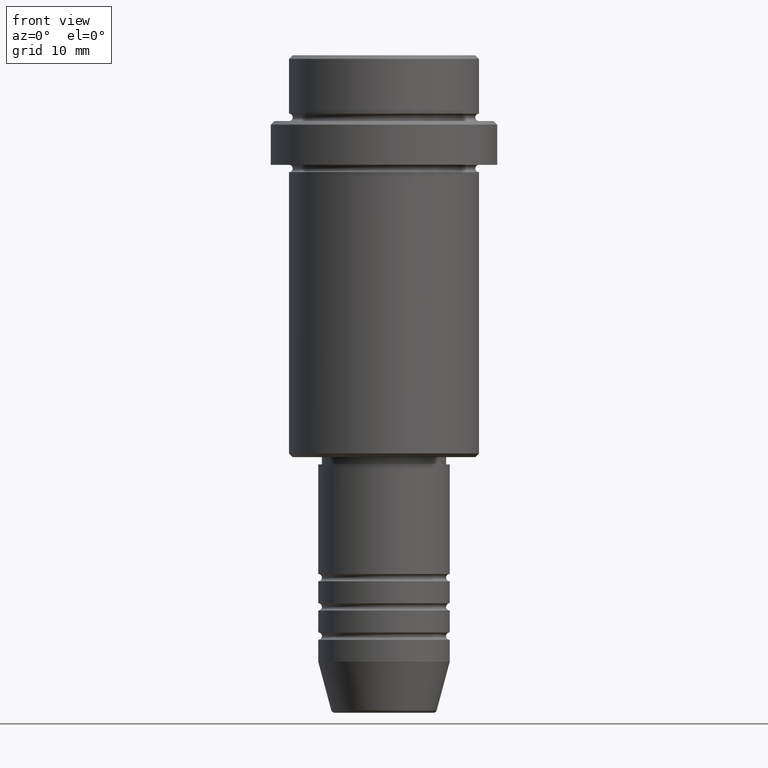
[diagram: clean part render]
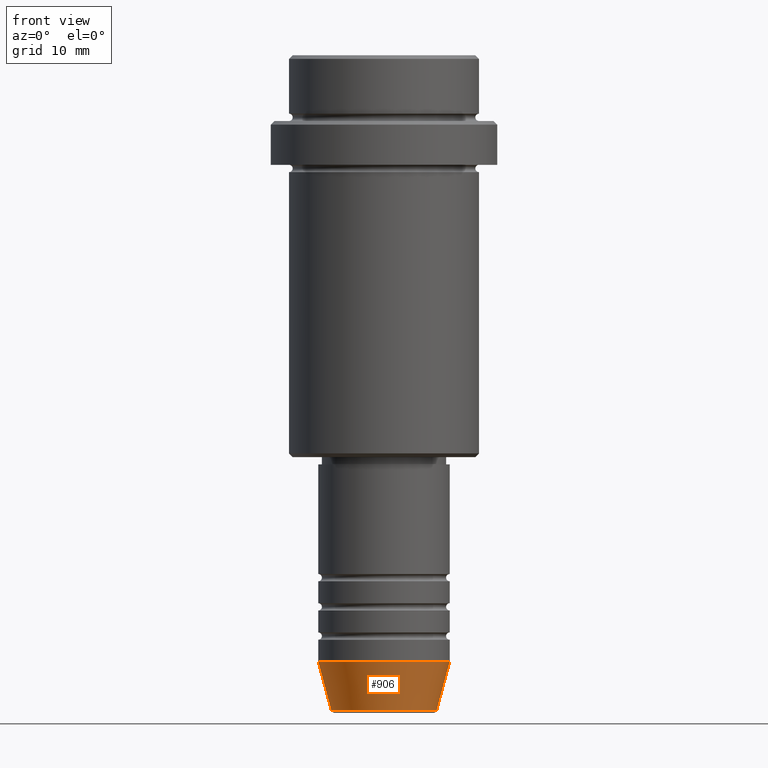
[diagram: same view with one face highlighted and labeled with its STEP entity id]
A machine part, front view. The second image highlights one B-rep face of the part: STEP entity #906.
In plain terms, the highlighted conical surface has half-angle 15 deg.
Its self-contained STEP definition (entity closure, byte-faithful):
#13 = DIRECTION ( 'NONE',  ( 0.2588190451025213501, 0.000000000000000000, 0.9659258262890680902 ) ) ;
#19 = CIRCLE ( 'NONE', #229, 7.223655072137193045 ) ;
#44 = AXIS2_PLACEMENT_3D ( 'NONE', #690, #261, #1127 ) ;
#74 = DIRECTION ( 'NONE',  ( -0.000000000000000000, -0.000000000000000000, 1.000000000000000000 ) ) ;
#99 = EDGE_CURVE ( 'NONE', #801, #1409, #646, .T. ) ;
#134 = VECTOR ( 'NONE', #414, 1000.000000000000000 ) ;
#141 = CARTESIAN_POINT ( 'NONE',  ( -7.223655072137193045, 9.934123627281767082E-16, -89.62940952255124216 ) ) ;
#154 = EDGE_CURVE ( 'NONE', #1069, #218, #561, .T. ) ;
#167 = FACE_OUTER_BOUND ( 'NONE', #829, .T. ) ;
#178 = DIRECTION ( 'NONE',  ( 1.000000000000000000, 0.000000000000000000, 0.000000000000000000 ) ) ;
#218 = VERTEX_POINT ( 'NONE', #226 ) ;
#226 = CARTESIAN_POINT ( 'NONE',  ( 9.000000000000000000, 0.000000000000000000, -83.00000000000000000 ) ) ;
#229 = AXIS2_PLACEMENT_3D ( 'NONE', #1051, #74, #1172 ) ;
#261 = DIRECTION ( 'NONE',  ( -0.000000000000000000, -0.000000000000000000, 1.000000000000000000 ) ) ;
#414 = DIRECTION ( 'NONE',  ( -0.2588190451025213501, 3.169619151431772337E-17, 0.9659258262890680902 ) ) ;
#419 = EDGE_CURVE ( 'NONE', #1409, #218, #1054, .T. ) ;
#429 = CARTESIAN_POINT ( 'NONE',  ( 7.223655072137193045, 0.000000000000000000, -89.62940952255124216 ) ) ;
#434 = EDGE_CURVE ( 'NONE', #801, #1069, #19, .T. ) ;
#561 = LINE ( 'NONE', #1314, #634 ) ;
#586 = CONICAL_SURFACE ( 'NONE', #820, 9.000000000000000000, 0.2617993877991500740 ) ;
#615 = CARTESIAN_POINT ( 'NONE',  ( -9.000000000000000000, 1.102182119232617714E-15, -83.00000000000000000 ) ) ;
#634 = VECTOR ( 'NONE', #13, 1000.000000000000000 ) ;
#646 = LINE ( 'NONE', #1387, #134 ) ;
#648 = ORIENTED_EDGE ( 'NONE', *, *, #434, .T. ) ;
#666 = ORIENTED_EDGE ( 'NONE', *, *, #99, .F. ) ;
#690 = CARTESIAN_POINT ( 'NONE',  ( 0.000000000000000000, 0.000000000000000000, -83.00000000000000000 ) ) ;
#801 = VERTEX_POINT ( 'NONE', #141 ) ;
#820 = AXIS2_PLACEMENT_3D ( 'NONE', #1365, #1262, #178 ) ;
#829 = EDGE_LOOP ( 'NONE', ( #666, #648, #973, #1343 ) ) ;
#906 = ADVANCED_FACE ( 'NONE', ( #167 ), #586, .T. ) ;
#973 = ORIENTED_EDGE ( 'NONE', *, *, #154, .T. ) ;
#1051 = CARTESIAN_POINT ( 'NONE',  ( 0.000000000000000000, 0.000000000000000000, -89.62940952255124216 ) ) ;
#1054 = CIRCLE ( 'NONE', #44, 9.000000000000000000 ) ;
#1069 = VERTEX_POINT ( 'NONE', #429 ) ;
#1127 = DIRECTION ( 'NONE',  ( 1.000000000000000000, 0.000000000000000000, 0.000000000000000000 ) ) ;
#1172 = DIRECTION ( 'NONE',  ( 1.000000000000000000, 0.000000000000000000, 0.000000000000000000 ) ) ;
#1262 = DIRECTION ( 'NONE',  ( -0.000000000000000000, -0.000000000000000000, 1.000000000000000000 ) ) ;
#1314 = CARTESIAN_POINT ( 'NONE',  ( 9.000000000000000000, 0.000000000000000000, -83.00000000000000000 ) ) ;
#1343 = ORIENTED_EDGE ( 'NONE', *, *, #419, .F. ) ;
#1365 = CARTESIAN_POINT ( 'NONE',  ( 0.000000000000000000, 0.000000000000000000, -83.00000000000000000 ) ) ;
#1387 = CARTESIAN_POINT ( 'NONE',  ( -9.000000000000000000, 1.102182119232617714E-15, -83.00000000000000000 ) ) ;
#1409 = VERTEX_POINT ( 'NONE', #615 ) ;